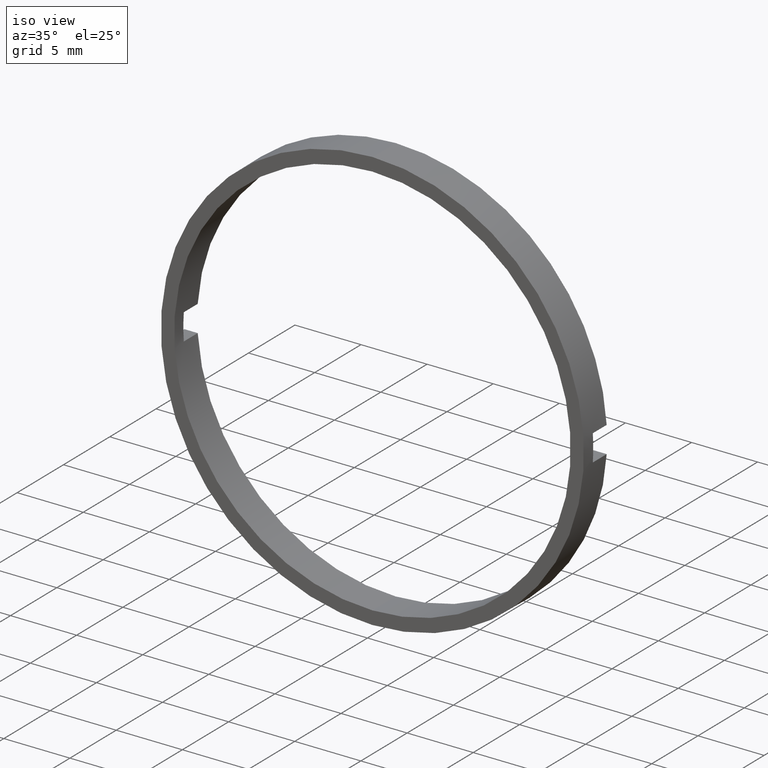
[diagram: clean part render]
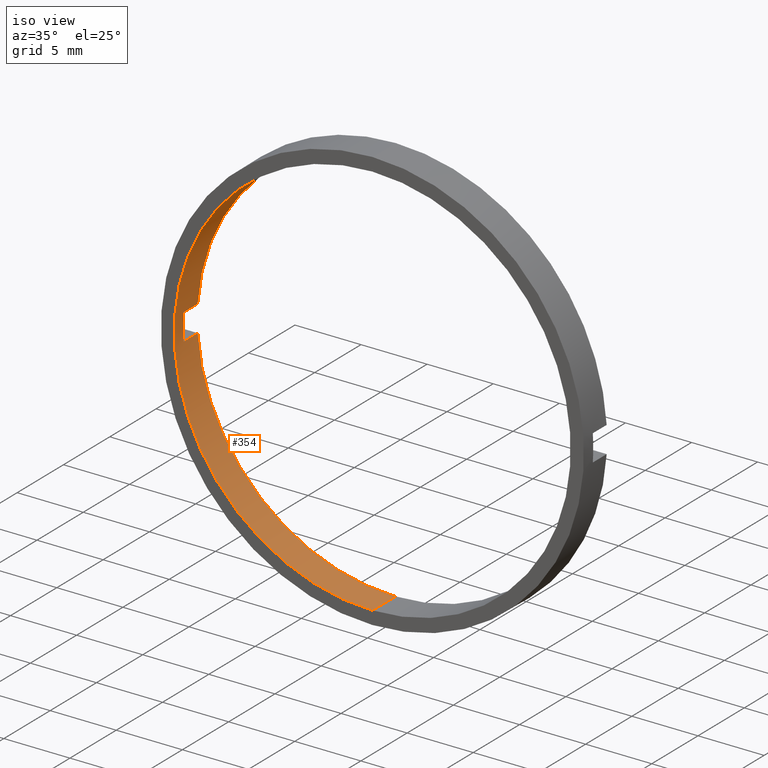
[diagram: same view with one face highlighted and labeled with its STEP entity id]
A machine part, iso view. The second image highlights one B-rep face of the part: STEP entity #354.
In plain terms, the highlighted cylindrical surface (partial cylindrical patch) has radius 15 mm, axis along (-0, 1, -0).
Its self-contained STEP definition (entity closure, byte-faithful):
#4 = AXIS2_PLACEMENT_3D ( 'NONE', #293, #78, #157 ) ;
#9 = CARTESIAN_POINT ( 'NONE',  ( -14.96662954709577200, 56.26084262701361600, 1.000000000000000000 ) ) ;
#12 = CARTESIAN_POINT ( 'NONE',  ( 0.0000000000000000000, -3.464249787179428400, 0.0000000000000000000 ) ) ;
#18 = ORIENTED_EDGE ( 'NONE', *, *, #413, .T. ) ;
#21 = CIRCLE ( 'NONE', #331, 15.00000000000000700 ) ;
#25 = VERTEX_POINT ( 'NONE', #403 ) ;
#32 = CYLINDRICAL_SURFACE ( 'NONE', #4, 15.00000000000000700 ) ;
#42 = ORIENTED_EDGE ( 'NONE', *, *, #375, .T. ) ;
#45 = EDGE_CURVE ( 'NONE', #225, #296, #406, .T. ) ;
#46 = VECTOR ( 'NONE', #214, 1000.000000000000000 ) ;
#47 = DIRECTION ( 'NONE',  ( -0.0000000000000000000, -1.000000000000000000, -0.0000000000000000000 ) ) ;
#51 = CARTESIAN_POINT ( 'NONE',  ( 1.836970198721030800E-015, -1.964249787179434000, -15.00000000000000700 ) ) ;
#69 = CARTESIAN_POINT ( 'NONE',  ( -14.96662954709577100, -3.464249787179428400, -0.9999999999999995600 ) ) ;
#78 = DIRECTION ( 'NONE',  ( -0.0000000000000000000, 1.000000000000000000, -0.0000000000000000000 ) ) ;
#90 = DIRECTION ( 'NONE',  ( 0.0000000000000000000, 0.0000000000000000000, 1.000000000000000000 ) ) ;
#96 = VECTOR ( 'NONE', #392, 1000.000000000000000 ) ;
#100 = VECTOR ( 'NONE', #227, 1000.000000000000000 ) ;
#117 = CARTESIAN_POINT ( 'NONE',  ( -14.96662954709577100, -1.964249787179434000, -0.9999999999999995600 ) ) ;
#123 = DIRECTION ( 'NONE',  ( -0.0000000000000000000, 1.000000000000000000, -0.0000000000000000000 ) ) ;
#143 = CARTESIAN_POINT ( 'NONE',  ( 0.0000000000000000000, -1.964249787179434000, 0.0000000000000000000 ) ) ;
#157 = DIRECTION ( 'NONE',  ( 0.0000000000000000000, 0.0000000000000000000, 1.000000000000000000 ) ) ;
#166 = LINE ( 'NONE', #268, #96 ) ;
#182 = AXIS2_PLACEMENT_3D ( 'NONE', #143, #453, #420 ) ;
#185 = EDGE_LOOP ( 'NONE', ( #186, #450, #42, #18, #329, #271, #455, #315 ) ) ;
#186 = ORIENTED_EDGE ( 'NONE', *, *, #45, .F. ) ;
#214 = DIRECTION ( 'NONE',  ( -0.0000000000000000000, 1.000000000000000000, -0.0000000000000000000 ) ) ;
#220 = CARTESIAN_POINT ( 'NONE',  ( 0.0000000000000000000, 56.26084262701361600, 15.00000000000000700 ) ) ;
#225 = VERTEX_POINT ( 'NONE', #252 ) ;
#227 = DIRECTION ( 'NONE',  ( 0.0000000000000000000, -1.000000000000000000, 0.0000000000000000000 ) ) ;
#228 = CARTESIAN_POINT ( 'NONE',  ( -14.96662954709577200, 56.26084262701361600, -1.000000000000000000 ) ) ;
#252 = CARTESIAN_POINT ( 'NONE',  ( 1.836970198721030800E-015, -4.464249787179428900, -15.00000000000000700 ) ) ;
#258 = LINE ( 'NONE', #9, #384 ) ;
#265 = EDGE_CURVE ( 'NONE', #412, #423, #325, .T. ) ;
#268 = CARTESIAN_POINT ( 'NONE',  ( 1.836970198721030800E-015, 56.26084262701361600, -15.00000000000000700 ) ) ;
#271 = ORIENTED_EDGE ( 'NONE', *, *, #436, .T. ) ;
#278 = EDGE_CURVE ( 'NONE', #296, #423, #381, .T. ) ;
#281 = DIRECTION ( 'NONE',  ( -0.0000000000000000000, 1.000000000000000000, -0.0000000000000000000 ) ) ;
#283 = VERTEX_POINT ( 'NONE', #69 ) ;
#285 = LINE ( 'NONE', #228, #100 ) ;
#293 = CARTESIAN_POINT ( 'NONE',  ( 0.0000000000000000000, 56.26084262701361600, 0.0000000000000000000 ) ) ;
#296 = VERTEX_POINT ( 'NONE', #326 ) ;
#315 = ORIENTED_EDGE ( 'NONE', *, *, #278, .F. ) ;
#325 = CIRCLE ( 'NONE', #182, 15.00000000000000700 ) ;
#326 = CARTESIAN_POINT ( 'NONE',  ( 0.0000000000000000000, -4.464249787179428900, 15.00000000000000700 ) ) ;
#329 = ORIENTED_EDGE ( 'NONE', *, *, #472, .F. ) ;
#331 = AXIS2_PLACEMENT_3D ( 'NONE', #471, #473, #380 ) ;
#354 = ADVANCED_FACE ( 'NONE', ( #433 ), #32, .F. ) ;
#356 = CIRCLE ( 'NONE', #394, 15.00000000000000700 ) ;
#374 = VERTEX_POINT ( 'NONE', #117 ) ;
#375 = EDGE_CURVE ( 'NONE', #432, #374, #21, .T. ) ;
#380 = DIRECTION ( 'NONE',  ( 0.0000000000000000000, 0.0000000000000000000, 1.000000000000000000 ) ) ;
#381 = LINE ( 'NONE', #220, #46 ) ;
#384 = VECTOR ( 'NONE', #123, 1000.000000000000000 ) ;
#392 = DIRECTION ( 'NONE',  ( -0.0000000000000000000, 1.000000000000000000, -0.0000000000000000000 ) ) ;
#394 = AXIS2_PLACEMENT_3D ( 'NONE', #12, #47, #90 ) ;
#396 = CARTESIAN_POINT ( 'NONE',  ( 0.0000000000000000000, -1.964249787179434000, 15.00000000000000700 ) ) ;
#403 = CARTESIAN_POINT ( 'NONE',  ( -14.96662954709577100, -3.464249787179428400, 0.9999999999999995600 ) ) ;
#406 = CIRCLE ( 'NONE', #484, 15.00000000000000700 ) ;
#411 = CARTESIAN_POINT ( 'NONE',  ( 0.0000000000000000000, -4.464249787179428900, 0.0000000000000000000 ) ) ;
#412 = VERTEX_POINT ( 'NONE', #430 ) ;
#413 = EDGE_CURVE ( 'NONE', #374, #283, #285, .T. ) ;
#420 = DIRECTION ( 'NONE',  ( 0.0000000000000000000, 0.0000000000000000000, 1.000000000000000000 ) ) ;
#423 = VERTEX_POINT ( 'NONE', #396 ) ;
#430 = CARTESIAN_POINT ( 'NONE',  ( -14.96662954709577100, -1.964249787179434000, 0.9999999999999995600 ) ) ;
#432 = VERTEX_POINT ( 'NONE', #51 ) ;
#433 = FACE_OUTER_BOUND ( 'NONE', #185, .T. ) ;
#435 = EDGE_CURVE ( 'NONE', #225, #432, #166, .T. ) ;
#436 = EDGE_CURVE ( 'NONE', #25, #412, #258, .T. ) ;
#450 = ORIENTED_EDGE ( 'NONE', *, *, #435, .T. ) ;
#453 = DIRECTION ( 'NONE',  ( -0.0000000000000000000, 1.000000000000000000, -0.0000000000000000000 ) ) ;
#455 = ORIENTED_EDGE ( 'NONE', *, *, #265, .T. ) ;
#471 = CARTESIAN_POINT ( 'NONE',  ( 0.0000000000000000000, -1.964249787179434000, 0.0000000000000000000 ) ) ;
#472 = EDGE_CURVE ( 'NONE', #25, #283, #356, .T. ) ;
#473 = DIRECTION ( 'NONE',  ( -0.0000000000000000000, 1.000000000000000000, -0.0000000000000000000 ) ) ;
#484 = AXIS2_PLACEMENT_3D ( 'NONE', #411, #281, #492 ) ;
#492 = DIRECTION ( 'NONE',  ( 0.0000000000000000000, 0.0000000000000000000, 1.000000000000000000 ) ) ;